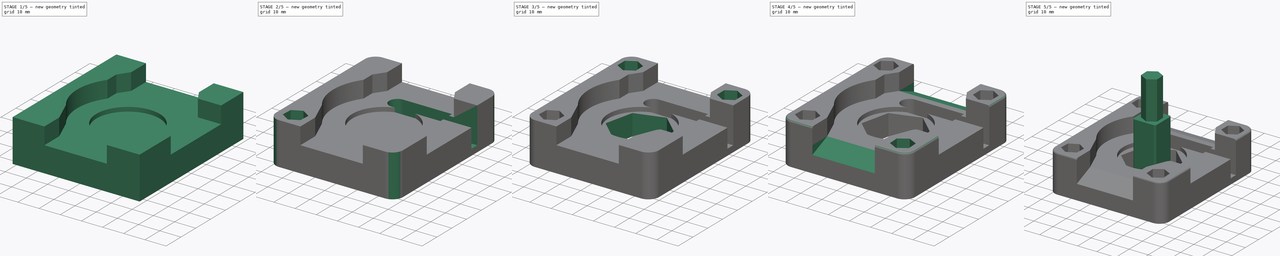
[diagram: build sequence overview — one tinted view per stage of 5, left to right]
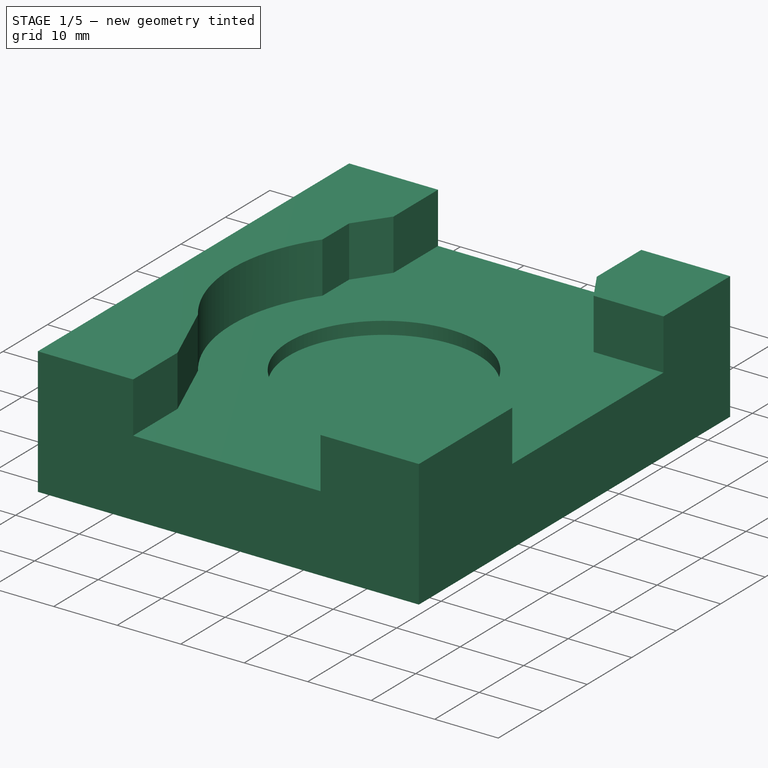
[diagram: stage 1 of 5 — iso view after this stage's code; geometry added in this stage tinted green]
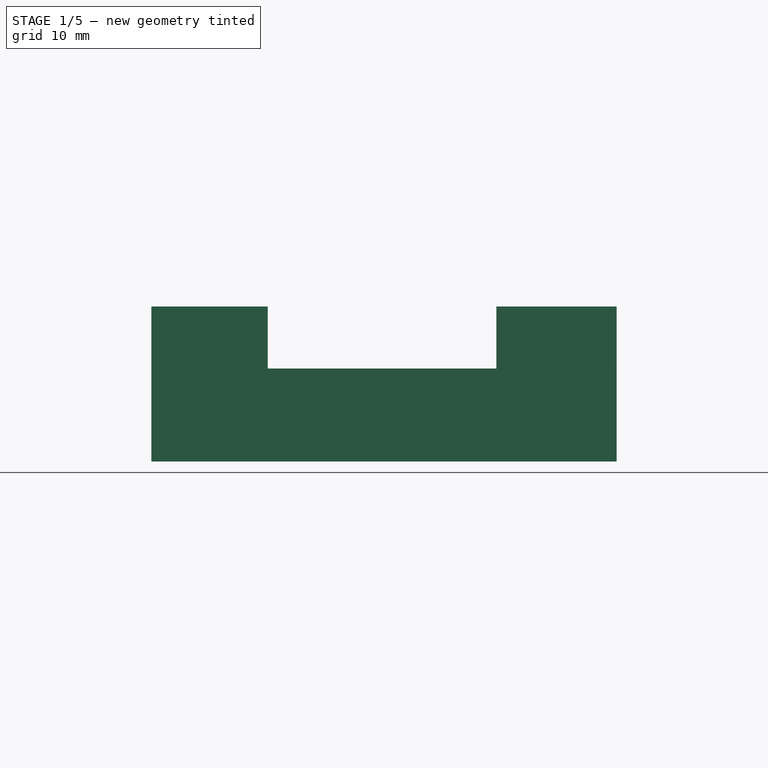
[diagram: stage 1 of 5 — front view after this stage's code; geometry added in this stage tinted green]
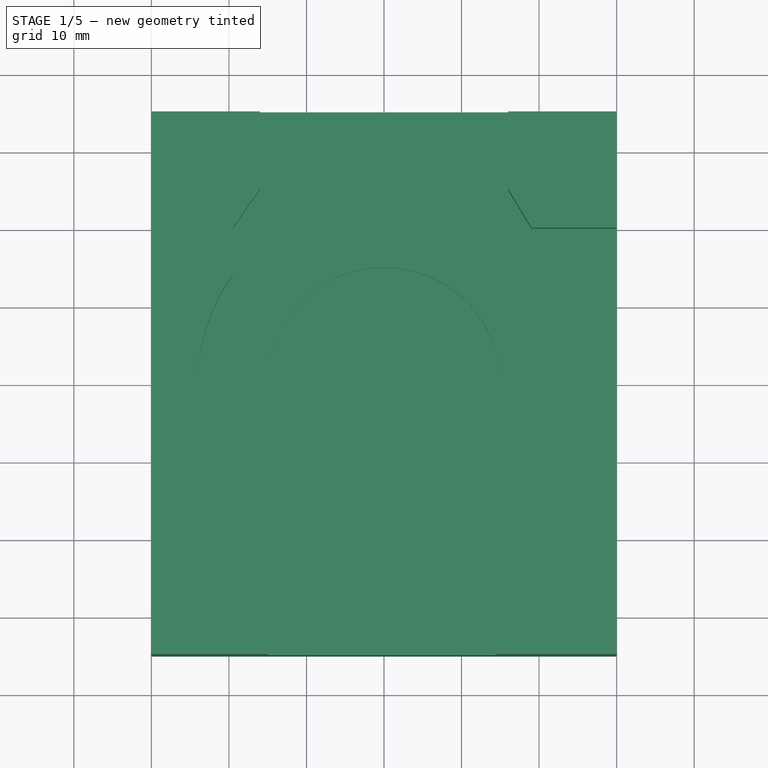
[diagram: stage 1 of 5 — top view after this stage's code; geometry added in this stage tinted green]
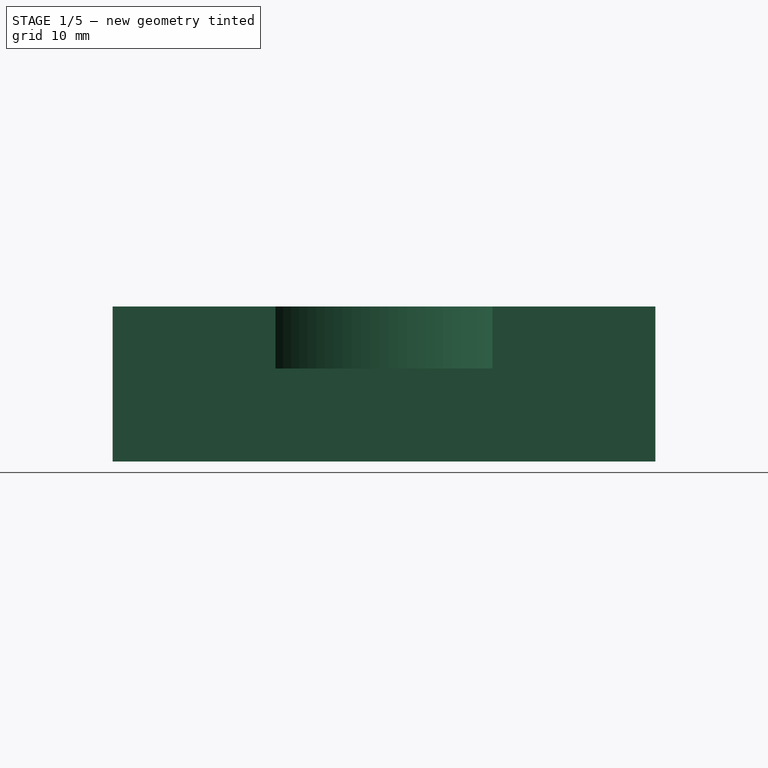
[diagram: stage 1 of 5 — right view after this stage's code; geometry added in this stage tinted green]
FCSTD DOCUMENT  (FreeCAD 0.19R23258 (Git))
Label: zach-watch3
License: All rights reserved
LicenseURL: http://en.wikipedia.org/wiki/All_rights_reserved
objects: Sketcher::SketchObject×10, PartDesign::Pocket×8, PartDesign::Pad×3, PartDesign::Fillet×3, PartDesign::Chamfer×2, PartDesign::Body×2, PartDesign::Mirrored×2, PartDesign::Plane×1
note: 47 computed .brp shape members not serialized (recipe doc carries the construction recipe); baked Part::Feature solids carry a one-line shape summary decoded from their .brp

FEATURE [Sketcher::SketchObject] Sketch  label="OuterBox"
  MapMode = 5
  Support = -> [XY_Plane]
  sketch-geometry (4):
    g0: LineSegment StartX=-30 StartY=35 StartZ=0 EndX=30 EndY=35 EndZ=0
    g1: LineSegment StartX=30 StartY=35 StartZ=0 EndX=30 EndY=-35 EndZ=0
    g2: LineSegment StartX=30 StartY=-35 StartZ=0 EndX=-30 EndY=-35 EndZ=0
    g3: LineSegment StartX=-30 StartY=-35 StartZ=0 EndX=-30 EndY=35 EndZ=0
  constraints (11):
    c: Coincident(g0,g1)
    c: Coincident(g1,g2)
    c: Coincident(g2,g3)
    c: Coincident(g3,g0)
    c: Horizontal(g0)
    c: Horizontal(g2)
    c: Vertical(g1)
    c: Vertical(g3)
    c: Symmetric(g0,g1,g-1)
    c: DistanceX(g2,g2) = 60  'Width'
    c: DistanceY(g1,g1) = 70  'Height'
FEATURE [PartDesign::Pad] Pad  label="OuterboxPad"
  Direction = (1,1,1)
  Length = 20
  Length2 = 100
  Profile = -> Sketch
  Type = 0
FEATURE [PartDesign::Plane] DatumPlane
  AttachmentOffset = pos=(0,0,20) rot=(0,0,1;0rad)
  Length = 60
  MapMode = 5
  Placement = pos=(0,0,20) rot=(0,0,1;0rad)
  ResizeMode = 1
  Support = -> [XY_Plane]
  Width = 70
  expr: Width = <<OuterBox>>.Constraints.Height
  expr: Length = <<OuterBox>>.Constraints.Width
  expr: .AttachmentOffset.Base.z = <<OuterboxPad>>.Length
FEATURE [Sketcher::SketchObject] Sketch001  label="InnerCircle"
  MapMode = 5
  Placement = pos=(0,0,20) rot=(0,0,1;0rad)
  Support = -> [DatumPlane]
  sketch-geometry (1):
    g0: Circle CenterX=0 CenterY=0 CenterZ=0 NormalX=0 NormalY=0 NormalZ=1 AngleXU=0 Radius=15
  constraints (2):
    c: Coincident(g0,g-1)
    c: Radius(g0) = 15
FEATURE [PartDesign::Pocket] Pocket  label="InnerCirclePocket"
  BaseFeature = -> Pad
  Length = 10
  Length2 = 100
  Profile = -> Sketch001
  Type = 0
  expr: Length = <<OuterboxPad>>.Length - 10mm
FEATURE [Sketcher::SketchObject] Sketch003  label="OuterCircle"
  MapMode = 5
  Placement = pos=(0,0,20) rot=(0,0,1;0rad)
  Support = -> [DatumPlane]
  sketch-geometry (1):
    g0: Circle CenterX=0 CenterY=0 CenterZ=0 NormalX=0 NormalY=0 NormalZ=1 AngleXU=0 Radius=24
  constraints (2):
    c: Coincident(g0,g-1)
    c: Radius(g0) = 24
FEATURE [PartDesign::Pocket] Pocket002  label="OuterCirclePocket"
  BaseFeature = -> Pocket
  Length = 8
  Length2 = 100
  Profile = -> Sketch003
  Type = 0
  expr: Length = <<OuterboxPad>>.Length - 12mm
FEATURE [Sketcher::SketchObject] Sketch007  label="WatchSpacing"
  MapMode = 5
  Placement = pos=(0,0,20) rot=(0,0,1;0rad)
  Support = -> [DatumPlane]
  sketch-geometry (14):
    g0: LineSegment StartX=19 StartY=20 StartZ=0 EndX=16 EndY=25 EndZ=0
    g1: LineSegment StartX=-15 StartY=-25 StartZ=0 EndX=-19.5 EndY=-14 EndZ=0
    g2: LineSegment StartX=-19.5 StartY=-14 StartZ=0 EndX=-19.5 EndY=20 EndZ=0
    g3: LineSegment StartX=14.5 StartY=-25 StartZ=0 EndX=19 EndY=-14 EndZ=0
    g4: LineSegment StartX=19 StartY=20 StartZ=0 EndX=30 EndY=20 EndZ=0
    g5: LineSegment StartX=30 StartY=-14 StartZ=0 EndX=19 EndY=-14 EndZ=0
    g6: LineSegment StartX=-16 StartY=35.4097 StartZ=0 EndX=16 EndY=35.4097 EndZ=0
    g7: LineSegment StartX=-15 StartY=-25 StartZ=0 EndX=-15 EndY=-35.0282 EndZ=0
    g8: LineSegment StartX=-15 StartY=-35.0282 StartZ=0 EndX=14.5 EndY=-35.0282 EndZ=0
    g9: LineSegment StartX=-16 StartY=25 StartZ=0 EndX=-19.5 EndY=20 EndZ=0
    g10: LineSegment StartX=14.5 StartY=-35.0282 StartZ=0 EndX=14.5 EndY=-25 EndZ=0
    g11: LineSegment StartX=30 StartY=-14 StartZ=0 EndX=30 EndY=20 EndZ=0
    g12: LineSegment StartX=16 StartY=25 StartZ=0 EndX=16 EndY=35.4097 EndZ=0
    g13: LineSegment StartX=-16 StartY=25 StartZ=0 EndX=-16 EndY=35.4097 EndZ=0
  constraints (39):
    c: Coincident(g1,g2)
    c: Vertical(g2)
    c: DistanceY(g0,g0) = 5
    c: DistanceY(g3,g3) = 11
    c: DistanceY(g1,g1) = 11
    c: DistanceX(g1,g3) = 29.5
    c: Coincident(g0,g4)
    c: Horizontal(g4)
    c: Coincident(g5,g3)
    c: Horizontal(g5)
    c: DistanceY(g1,g-1) = 25
    c: DistanceX(g3,g3) = 4.5
    c: DistanceX(g-1,g3) = 14.5
    c: DistanceX(g-1,g0) = 19
    c: Coincident(g1,g7)
    c: Vertical(g7)
    c: Coincident(g7,g8)
    c: DistanceY(g-1,g0) = 25
    c: DistanceY(g3,g-1) = 14
    c: DistanceX(g-1,g0) = 16
    c: DistanceX(g1,g-1) = 19.5
    c: DistanceY(g-1,g2) = 20
    c: Coincident(g9,g2)
    c: Horizontal(g6)
    c: Horizontal(g8)
    c: Coincident(g8,g10)
    c: Coincident(g10,g3)
    c: Vertical(g10)
    c: Coincident(g5,g11)
    c: Coincident(g11,g4)
    c: Vertical(g11)
    c: Coincident(g0,g12)
    c: Coincident(g12,g6)
    c: Vertical(g12)
    c: DistanceY(g2,g9) = 5
    c: Coincident(g9,g13)
    c: Vertical(g13)
    c: Coincident(g6,g13)
    c: DistanceX(g6,g6) = 32
FEATURE [Sketcher::SketchObject] Sketch005  label="PowerAdaptor"
  ExternalGeometry = -> [Sketch]
  MapMode = 5
  Placement = pos=(0,0,20) rot=(0,0,1;0rad)
  Support = -> [DatumPlane]
  sketch-geometry (8):
    g0: LineSegment StartX=16.7 StartY=22 StartZ=0 EndX=-6.3 EndY=22 EndZ=0
    g1: ArcOfCircle CenterX=-6.3 CenterY=18.1 CenterZ=0 NormalX=0 NormalY=0 NormalZ=1 AngleXU=0 Radius=3.9 StartAngle=1.5708 EndAngle=4.71239
    g2: LineSegment StartX=-6.3 StartY=14.2 StartZ=0 EndX=16.7 EndY=14.2 EndZ=0
    g3: LineSegment StartX=16.7 StartY=22 StartZ=0 EndX=16.7 EndY=20.05 EndZ=0
    g4: LineSegment StartX=16.7 StartY=20.05 StartZ=0 EndX=30 EndY=20.05 EndZ=0
    g5: LineSegment StartX=30 StartY=20.05 StartZ=0 EndX=30 EndY=16.15 EndZ=0
    g6: LineSegment StartX=30 StartY=16.15 StartZ=0 EndX=16.7 EndY=16.15 EndZ=0
    g7: LineSegment StartX=16.7 StartY=16.15 StartZ=0 EndX=16.7 EndY=14.2 EndZ=0
  constraints (23):
    c: Horizontal(g0)
    c: Tangent(g0,g1) = -1.5708
    c: Horizontal(g2)
    c: Tangent(g1,g2) = -1.5708
    c: Coincident(g0,g3)
    c: Vertical(g3)
    c: Coincident(g3,g4)
    c: PointOnObject(g4,g-3)
    c: Horizontal(g4)
    c: Coincident(g4,g5)
    c: PointOnObject(g5,g-3)
    c: Coincident(g5,g6)
    c: Horizontal(g6)
    c: Coincident(g6,g7)
    c: Coincident(g7,g2)
    c: Vertical(g7)
    c: Equal(g4,g6)
    c: DistanceX(g1,g-1) = 6.3
    c: DistanceX(g-1,g2) = 16.7
    c: DistanceY(g1,g0) = 7.8
    c: DistanceY(g6,g3) = 3.9
    c: DistanceY(g-1,g2) = 14.2
    c: DistanceY(g2,g6) = 1.95
FEATURE [PartDesign::Pocket] Pocket003  label="WatchSpacingPocket"
  BaseFeature = -> Pocket002
  Length = 8
  Length2 = 100
  Profile = -> Sketch007
  Type = 0
  expr: Length = <<OuterCirclePocket>>.Length
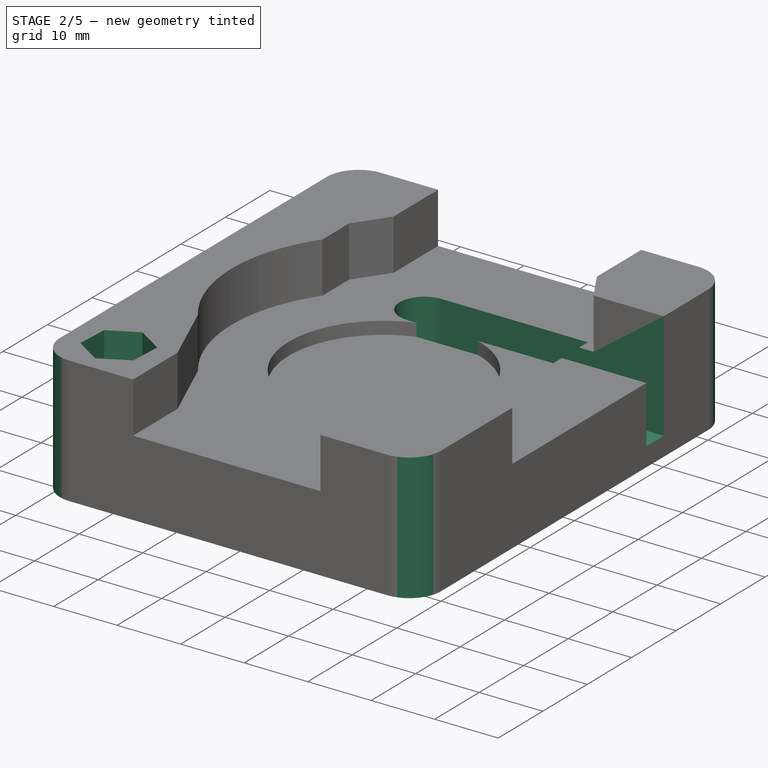
[diagram: stage 2 of 5 — iso view after this stage's code; geometry added in this stage tinted green]
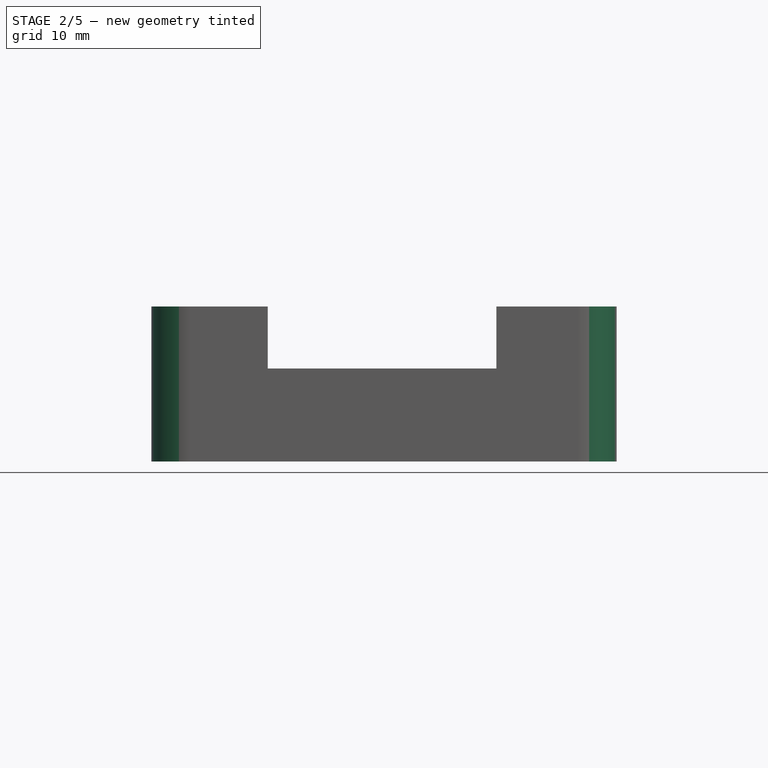
[diagram: stage 2 of 5 — front view after this stage's code; geometry added in this stage tinted green]
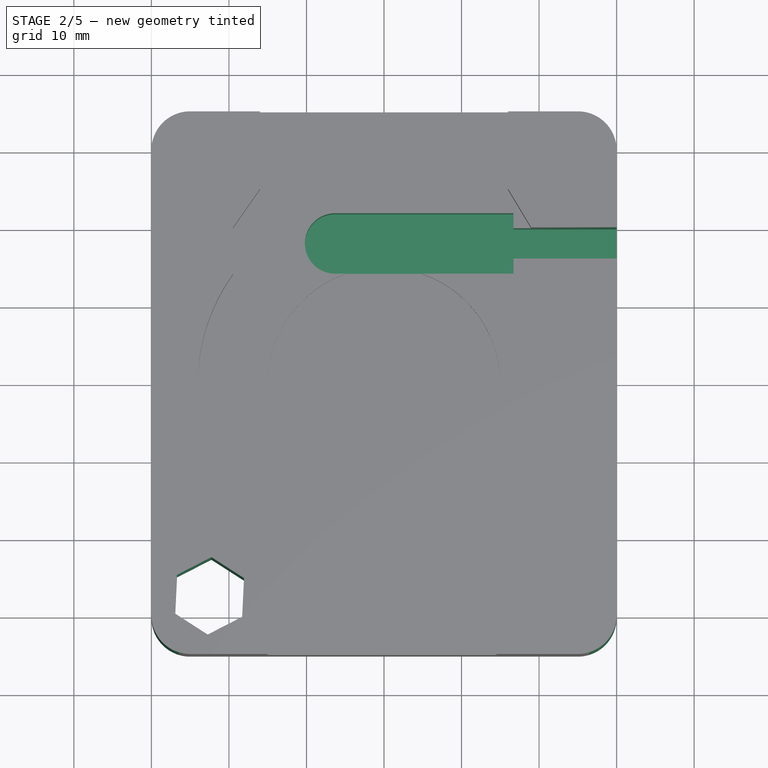
[diagram: stage 2 of 5 — top view after this stage's code; geometry added in this stage tinted green]
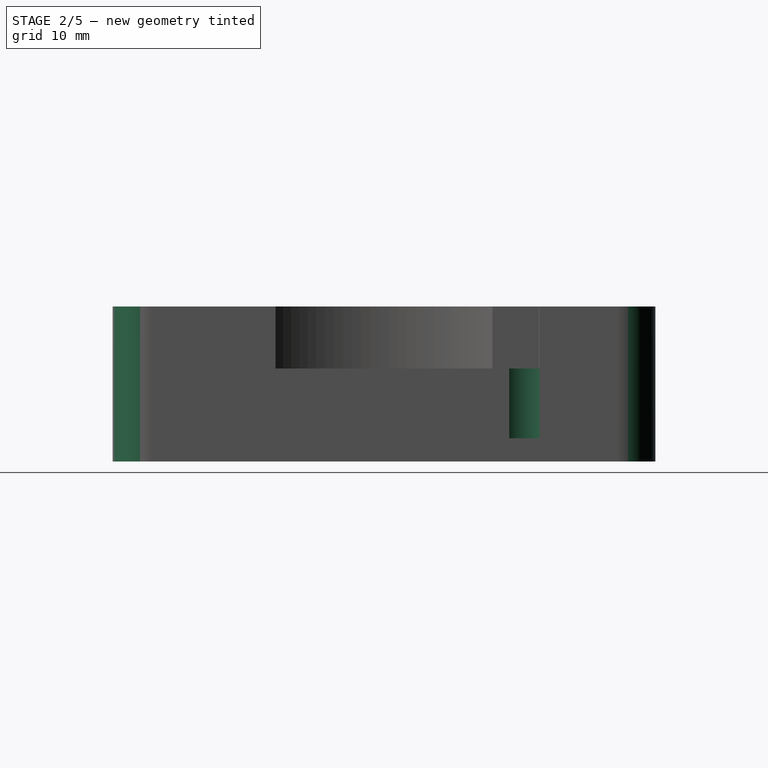
[diagram: stage 2 of 5 — right view after this stage's code; geometry added in this stage tinted green]
FEATURE [PartDesign::Pocket] Pocket004  label="PowerAdaptorPocket"
  BaseFeature = -> Pocket003
  Length = 17
  Length2 = 100
  Profile = -> Sketch005
  Type = 0
  expr: Length = <<OuterCirclePocket>>.Length + 9mm
FEATURE [PartDesign::Fillet] Fillet
  Base = -> Pocket004 [Edge8,Edge2,Edge43,Edge12]
  BaseFeature = -> Pocket004
  Radius = 5
  SupportTransform = false
FEATURE [PartDesign::Body] Body001
  Group = -> [Sketch010,Sketch011,Pad001,Pad002,Chamfer002,Fillet002]
  Origin = -> Origin001
  Tip = -> Fillet002
FEATURE [Sketcher::SketchObject] Sketch012
  ExternalGeometry = -> [Sketch]
  MapMode = 5
  Placement = pos=(0,0,20) rot=(0,0,1;0rad)
  Support = -> [DatumPlane]
  sketch-geometry (7):
    g0: LineSegment StartX=-18.2958 StartY=-30.2064 StartZ=0 EndX=-18.0541 EndY=-25.2123 EndZ=0
    g1: LineSegment StartX=-18.0541 StartY=-25.2123 StartZ=0 EndX=-22.2583 EndY=-22.5058 EndZ=0
    g2: LineSegment StartX=-22.2583 StartY=-22.5058 StartZ=0 EndX=-26.7042 EndY=-24.7936 EndZ=0
    g3: LineSegment StartX=-26.7042 StartY=-24.7936 StartZ=0 EndX=-26.9459 EndY=-29.7877 EndZ=0
    g4: LineSegment StartX=-26.9459 StartY=-29.7877 StartZ=0 EndX=-22.7417 EndY=-32.4942 EndZ=0
    g5: LineSegment StartX=-22.7417 StartY=-32.4942 StartZ=0 EndX=-18.2958 EndY=-30.2064 EndZ=0
    g6: Circle [constr] CenterX=-22.5 CenterY=-27.5 CenterZ=0 NormalX=0 NormalY=0 NormalZ=1 AngleXU=0 Radius=5
  constraints (16):
    c: Coincident(g0,g1)
    c: Coincident(g1,g2)
    c: Coincident(g2,g3)
    c: Coincident(g3,g4)
    c: Coincident(g4,g5)
    c: Coincident(g5,g0)
    c: Equal(g0, g1-g5) x5
    c: PointOnObject(g0,g6)
    c: PointOnObject(g1,g6)
    c: PointOnObject(g2,g6)
    c: PointOnObject(g3,g6)
    c: PointOnObject(g4,g6)
    c: PointOnObject(g5,g6)
    c: Radius(g6) = 5
    c: DistanceX(g-3,g6) = 7.5
    c: DistanceY(g-3,g6) = 7.5
FEATURE [PartDesign::Pocket] Pocket005
  BaseFeature = -> Fillet
  Length = 20
  Length2 = 100
  Profile = -> Sketch012
  Type = 0
  expr: Length = <<OuterboxPad>>.Length
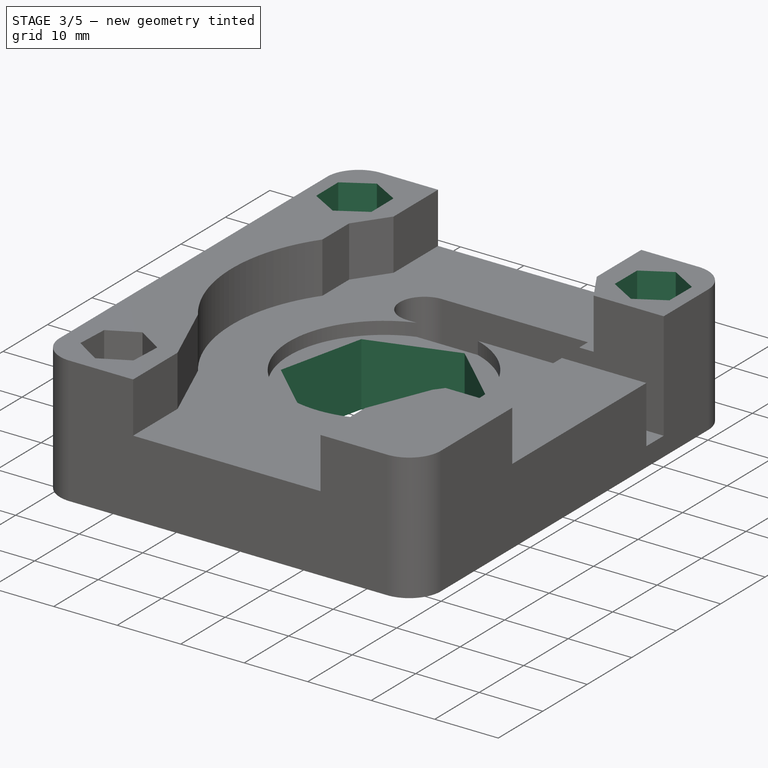
[diagram: stage 3 of 5 — iso view after this stage's code; geometry added in this stage tinted green]
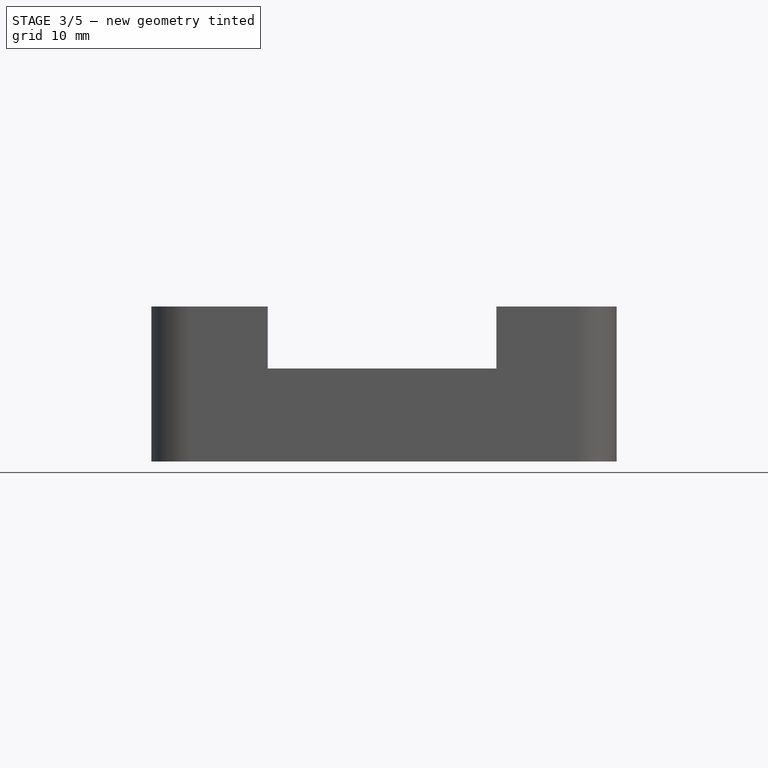
[diagram: stage 3 of 5 — front view after this stage's code; geometry added in this stage tinted green]
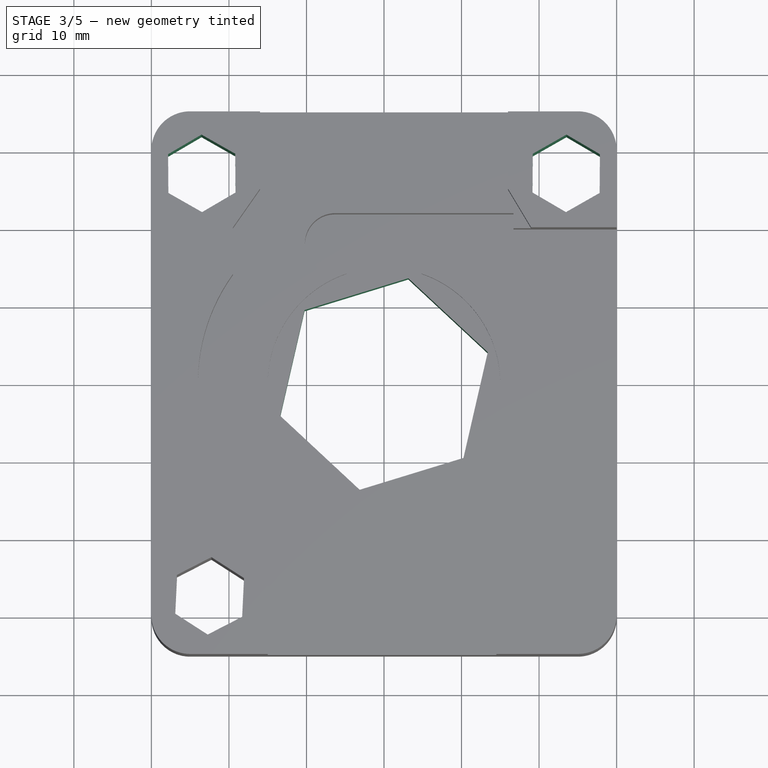
[diagram: stage 3 of 5 — top view after this stage's code; geometry added in this stage tinted green]
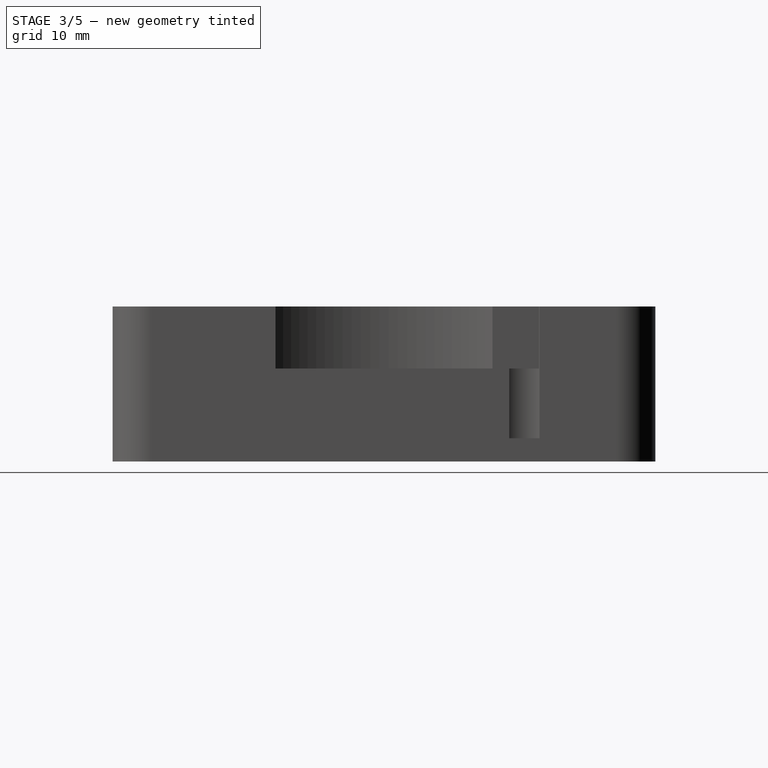
[diagram: stage 3 of 5 — right view after this stage's code; geometry added in this stage tinted green]
FEATURE [PartDesign::Pocket] Pocket006
  BaseFeature = -> Pocket005
  Length = 20
  Length2 = 100
  Profile = -> Sketch009
  Type = 0
  expr: Length = <<OuterboxPad>>.Length
FEATURE [PartDesign::Pocket] Pocket007
  BaseFeature = -> Pocket006
  Length = 20
  Length2 = 100
  Profile = -> Sketch012
  Type = 0
  expr: Length = <<OuterboxPad>>.Length
FEATURE [Sketcher::SketchObject] Sketch008
  ExternalGeometry = -> [Sketch]
  MapMode = 5
  Placement = pos=(0,0,20) rot=(0,0,1;0rad)
  Support = -> [DatumPlane]
  sketch-geometry (7):
    g0: LineSegment StartX=-19.1861 StartY=29.5279 StartZ=0 EndX=-23.5322 EndY=31.9999 EndZ=0
    g1: LineSegment StartX=-23.5322 StartY=31.9999 StartZ=0 EndX=-27.8462 EndY=29.472 EndZ=0
    g2: LineSegment StartX=-27.8462 StartY=29.472 StartZ=0 EndX=-27.8139 EndY=24.4721 EndZ=0
    g3: LineSegment StartX=-27.8139 StartY=24.4721 StartZ=0 EndX=-23.4678 EndY=22.0001 EndZ=0
    g4: LineSegment StartX=-23.4678 StartY=22.0001 StartZ=0 EndX=-19.1538 EndY=24.528 EndZ=0
    g5: LineSegment StartX=-19.1538 StartY=24.528 StartZ=0 EndX=-19.1861 EndY=29.5279 EndZ=0
    g6: Circle [constr] CenterX=-23.5 CenterY=27 CenterZ=0 NormalX=0 NormalY=0 NormalZ=1 AngleXU=0 Radius=5
  constraints (16):
    c: Coincident(g0,g1)
    c: Coincident(g1,g2)
    c: Coincident(g2,g3)
    c: Coincident(g3,g4)
    c: Coincident(g4,g5)
    c: Coincident(g5,g0)
    c: Equal(g0, g1-g5) x5
    c: PointOnObject(g0,g6)
    c: PointOnObject(g1,g6)
    c: PointOnObject(g2,g6)
    c: PointOnObject(g3,g6)
    c: PointOnObject(g4,g6)
    c: PointOnObject(g5,g6)
    c: Radius(g6) = 5
    c: DistanceX(g-3,g6) = 6.5
    c: DistanceY(g6,g-3) = 8
FEATURE [PartDesign::Pocket] Pocket008
  BaseFeature = -> Pocket007
  Length = 20
  Length2 = 100
  Profile = -> Sketch008
  Type = 0
  expr: Length = <<OuterboxPad>>.Length
FEATURE [PartDesign::Mirrored] Mirrored
  BaseFeature = -> Pocket008
  MirrorPlane = -> Sketch008 [V_Axis]
  Originals = -> [Pocket008]
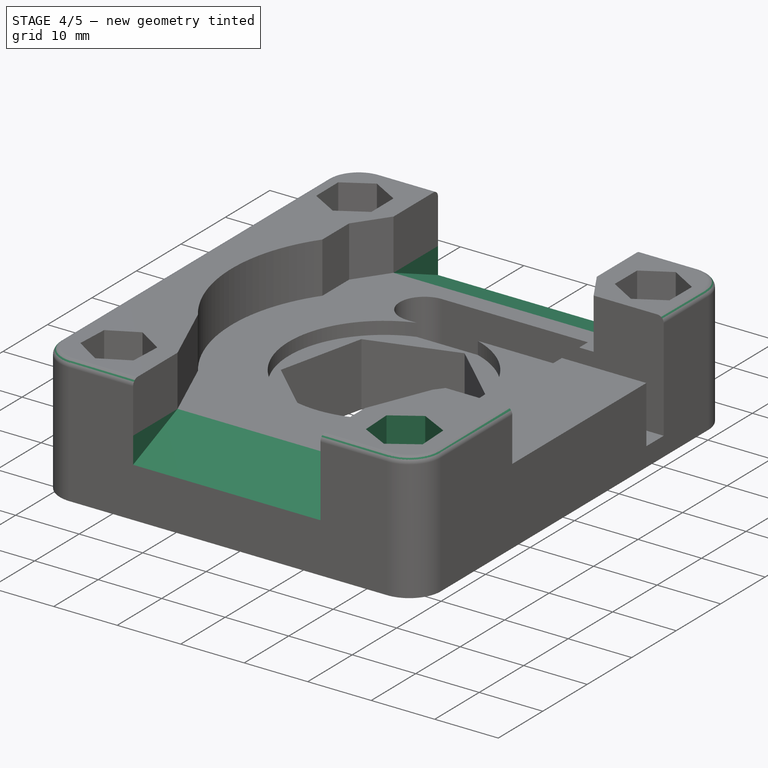
[diagram: stage 4 of 5 — iso view after this stage's code; geometry added in this stage tinted green]
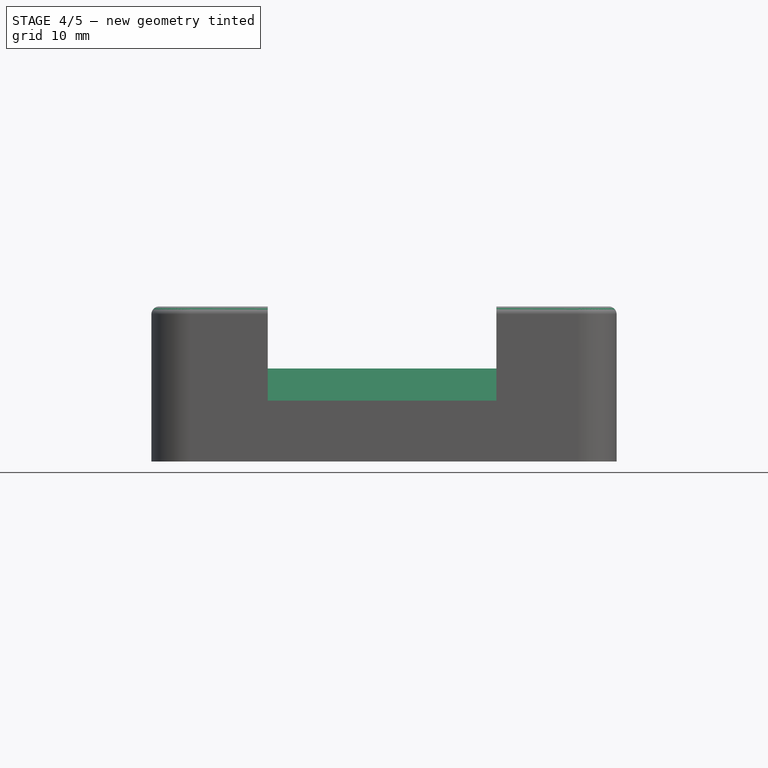
[diagram: stage 4 of 5 — front view after this stage's code; geometry added in this stage tinted green]
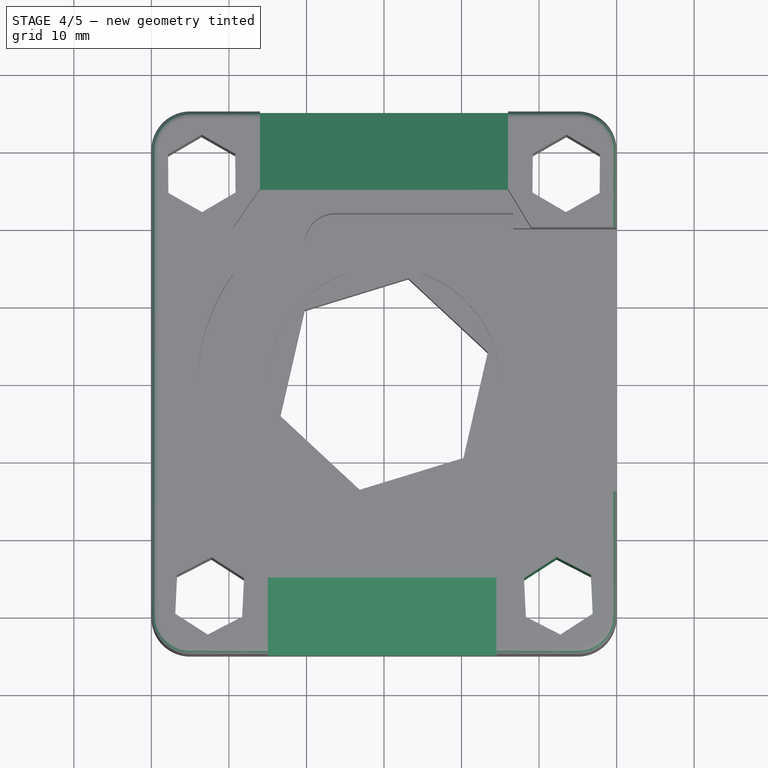
[diagram: stage 4 of 5 — top view after this stage's code; geometry added in this stage tinted green]
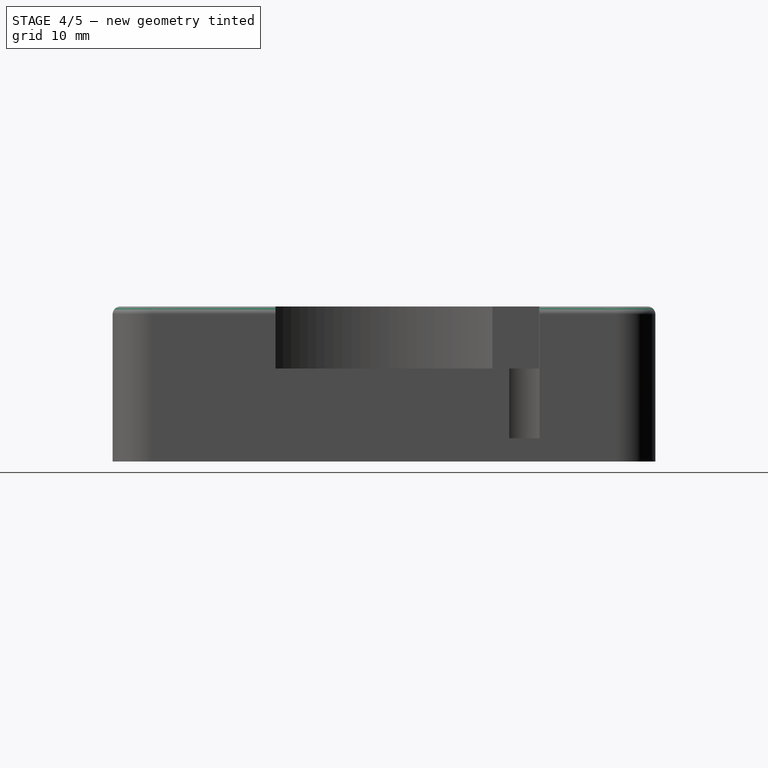
[diagram: stage 4 of 5 — right view after this stage's code; geometry added in this stage tinted green]
FEATURE [PartDesign::Mirrored] Mirrored001
  BaseFeature = -> Mirrored
  MirrorPlane = -> Sketch012 [V_Axis]
  Originals = -> [Pocket007]
FEATURE [PartDesign::Chamfer] Chamfer
  Angle = 22.5
  Base = -> Mirrored001 [Edge107,Edge8]
  BaseFeature = -> Mirrored001
  ChamferType = 2
  FlipDirection = true
  Size = 10
  Size2 = 1
  SupportTransform = false
FEATURE [PartDesign::Fillet] Fillet003
  Base = -> Chamfer [Edge19,Edge17,Edge16,Edge18,Edge4,Edge9,Edge79,Edge78,Edge128,Edge134,Edge102]
  BaseFeature = -> Chamfer
  Radius = 1
  SupportTransform = false
FEATURE [PartDesign::Body] Body
  Group = -> [Sketch,Pad,DatumPlane,Sketch001,Pocket,Sketch003,Pocket002,Pocket003,Pocket004,Fillet,Sketch008,Sketch009,Pocket005,Pocket006,Sketch012,Pocket007,Pocket008,Mirrored,Mirrored001,Chamfer,Fillet003]
  Origin = -> Origin
  Tip = -> Fillet003
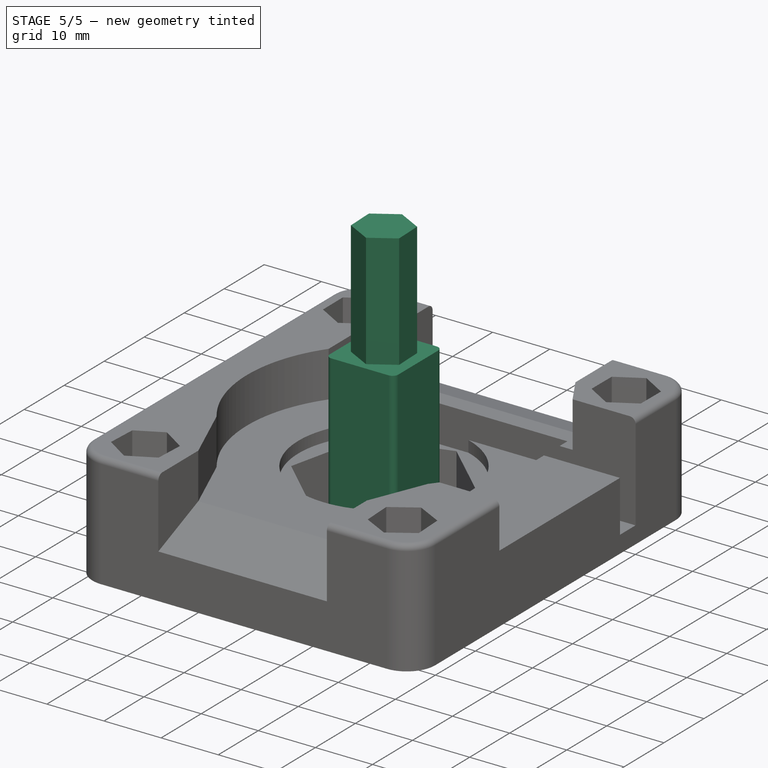
[diagram: stage 5 of 5 — iso view after this stage's code; geometry added in this stage tinted green]
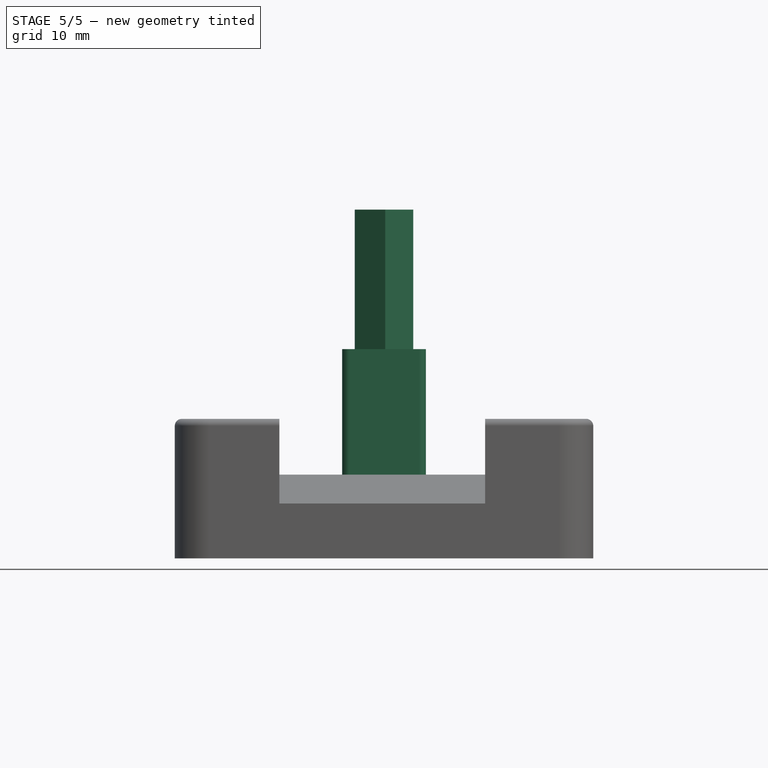
[diagram: stage 5 of 5 — front view after this stage's code; geometry added in this stage tinted green]
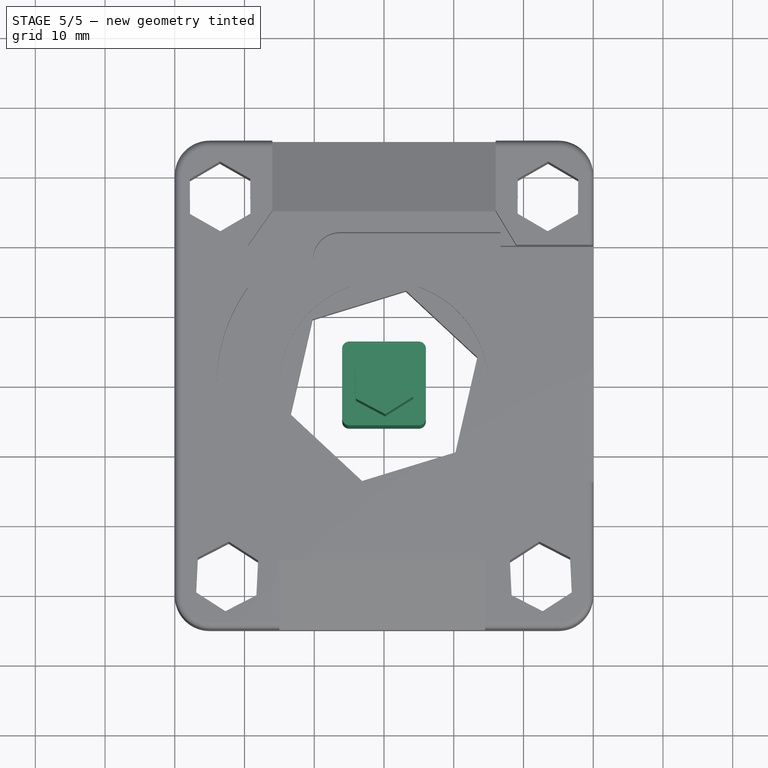
[diagram: stage 5 of 5 — top view after this stage's code; geometry added in this stage tinted green]
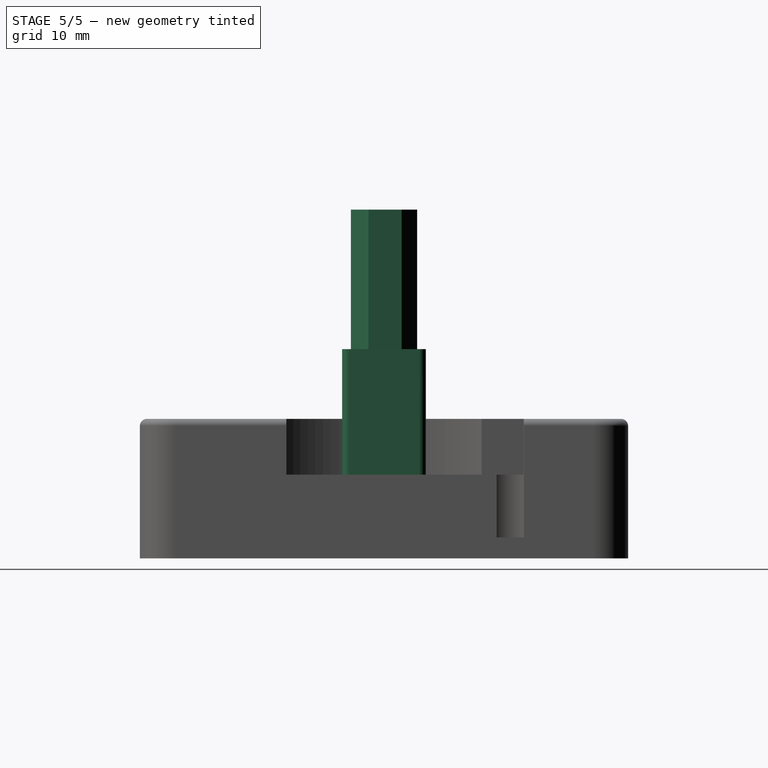
[diagram: stage 5 of 5 — right view after this stage's code; geometry added in this stage tinted green]
FEATURE [Sketcher::SketchObject] Sketch009
  MapMode = 5
  Placement = pos=(0,0,20) rot=(0,0,1;0rad)
  Support = -> [DatumPlane]
  sketch-geometry (7):
    g0: LineSegment StartX=10.2484 StartY=-9.5378 StartZ=0 EndX=13.3842 EndY=4.1065 EndZ=0
    g1: LineSegment StartX=13.3842 StartY=4.1065 StartZ=0 EndX=3.13576 EndY=13.6443 EndZ=0
    g2: LineSegment StartX=3.13576 StartY=13.6443 StartZ=0 EndX=-10.2484 EndY=9.5378 EndZ=0
    g3: LineSegment StartX=-10.2484 StartY=9.5378 StartZ=0 EndX=-13.3842 EndY=-4.1065 EndZ=0
    g4: LineSegment StartX=-13.3842 StartY=-4.1065 StartZ=0 EndX=-3.13576 EndY=-13.6443 EndZ=0
    g5: LineSegment StartX=-3.13576 StartY=-13.6443 StartZ=0 EndX=10.2484 EndY=-9.5378 EndZ=0
    g6: Circle [constr] CenterX=0 CenterY=0 CenterZ=0 NormalX=0 NormalY=0 NormalZ=1 AngleXU=0 Radius=14
  constraints (15):
    c: Coincident(g0,g1)
    c: Coincident(g1,g2)
    c: Coincident(g2,g3)
    c: Coincident(g3,g4)
    c: Coincident(g4,g5)
    c: Coincident(g5,g0)
    c: Equal(g0, g1-g5) x5
    c: PointOnObject(g0,g6)
    c: PointOnObject(g1,g6)
    c: PointOnObject(g2,g6)
    c: PointOnObject(g3,g6)
    c: PointOnObject(g4,g6)
    c: PointOnObject(g5,g6)
    c: Coincident(g6,g-1)
    c: Radius(g6) = 14
FEATURE [Sketcher::SketchObject] Sketch010
  MapMode = 5
  Support = -> [XY_Plane001]
  sketch-geometry (4):
    g0: LineSegment StartX=-6 StartY=6 StartZ=0 EndX=6 EndY=6 EndZ=0
    g1: LineSegment StartX=6 StartY=6 StartZ=0 EndX=6 EndY=-6 EndZ=0
    g2: LineSegment StartX=6 StartY=-6 StartZ=0 EndX=-6 EndY=-6 EndZ=0
    g3: LineSegment StartX=-6 StartY=-6 StartZ=0 EndX=-6 EndY=6 EndZ=0
  constraints (11):
    c: Coincident(g0,g1)
    c: Coincident(g1,g2)
    c: Coincident(g2,g3)
    c: Coincident(g3,g0)
    c: Horizontal(g0)
    c: Horizontal(g2)
    c: Vertical(g1)
    c: Vertical(g3)
    c: DistanceY(g1,g1) = 12
    c: Equal(g3,g2)
    c: Symmetric(g0,g1,g-1)
FEATURE [Sketcher::SketchObject] Sketch011
  MapMode = 5
  Support = -> [XY_Plane001]
  sketch-geometry (7):
    g0: LineSegment StartX=4.19941 StartY=-2.21978 StartZ=0 EndX=4.0221 EndY=2.52691 EndZ=0
    g1: LineSegment StartX=4.0221 StartY=2.52691 StartZ=0 EndX=-0.177317 EndY=4.74669 EndZ=0
    g2: LineSegment StartX=-0.177317 StartY=4.74669 StartZ=0 EndX=-4.19941 EndY=2.21978 EndZ=0
    g3: LineSegment StartX=-4.19941 StartY=2.21978 StartZ=0 EndX=-4.0221 EndY=-2.52691 EndZ=0
    g4: LineSegment StartX=-4.0221 StartY=-2.52691 StartZ=0 EndX=0.177317 EndY=-4.74669 EndZ=0
    g5: LineSegment StartX=0.177317 StartY=-4.74669 StartZ=0 EndX=4.19941 EndY=-2.21978 EndZ=0
    g6: Circle [constr] CenterX=0 CenterY=0 CenterZ=0 NormalX=0 NormalY=0 NormalZ=1 AngleXU=0 Radius=4.75
  constraints (15):
    c: Coincident(g0,g1)
    c: Coincident(g1,g2)
    c: Coincident(g2,g3)
    c: Coincident(g3,g4)
    c: Coincident(g4,g5)
    c: Coincident(g5,g0)
    c: Equal(g0, g1-g5) x5
    c: PointOnObject(g0,g6)
    c: PointOnObject(g1,g6)
    c: PointOnObject(g2,g6)
    c: PointOnObject(g3,g6)
    c: PointOnObject(g4,g6)
    c: PointOnObject(g5,g6)
    c: Coincident(g6,g-1)
    c: Radius(g6) = 4.75
FEATURE [PartDesign::Pad] Pad001  label="InnerPad"
  Direction = (1,1,1)
  Length = 50
  Length2 = 100
  Profile = -> Sketch011
  Type = 0
FEATURE [PartDesign::Pad] Pad002  label="OuterPad"
  BaseFeature = -> Pad001
  Direction = (1,1,1)
  Length = 30
  Length2 = 100
  Profile = -> Sketch010
  Type = 0
  expr: Length = <<InnerPad>>.Length - <<OuterboxPad>>.Length
FEATURE [PartDesign::Chamfer] Chamfer002
  Angle = 45
  Base = -> Pad002 [Edge10,Edge9,Edge7,Edge8]
  BaseFeature = -> Pad002
  ChamferType = 0
  FlipDirection = false
  Size = 1
  Size2 = 1
  SupportTransform = false
FEATURE [PartDesign::Fillet] Fillet002
  Base = -> Chamfer002 [Edge19,Edge21,Edge22,Edge25]
  BaseFeature = -> Chamfer002
  Radius = 1
  SupportTransform = false
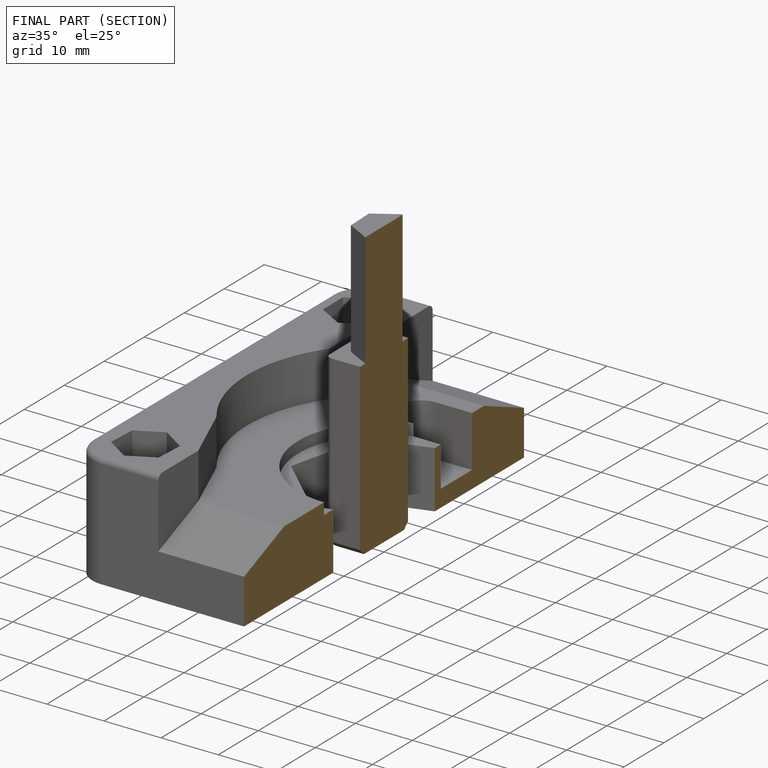
[diagram: finished part — half-section view (interior)]
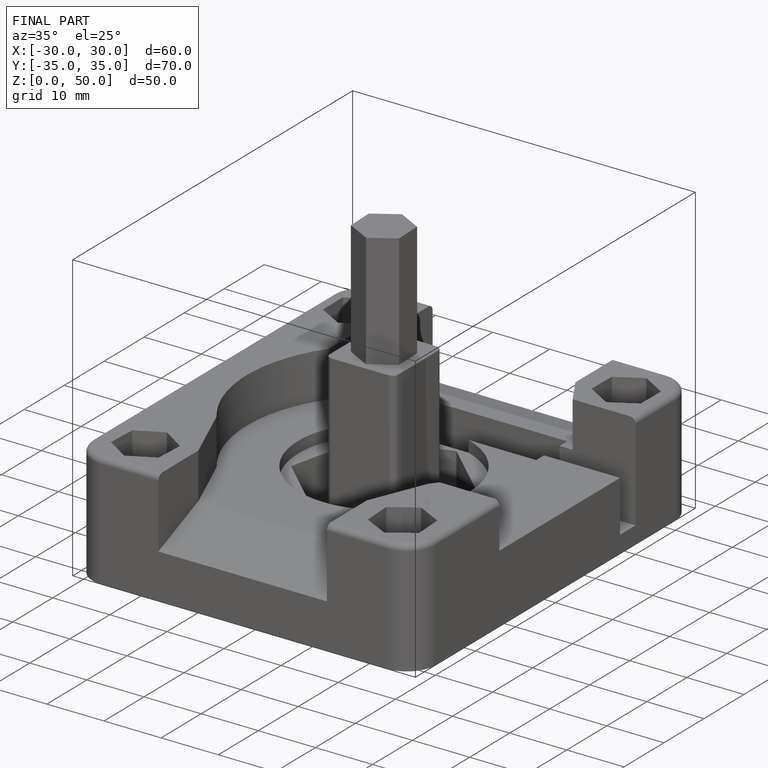
[diagram: finished part — iso view with bounding-box wireframe]
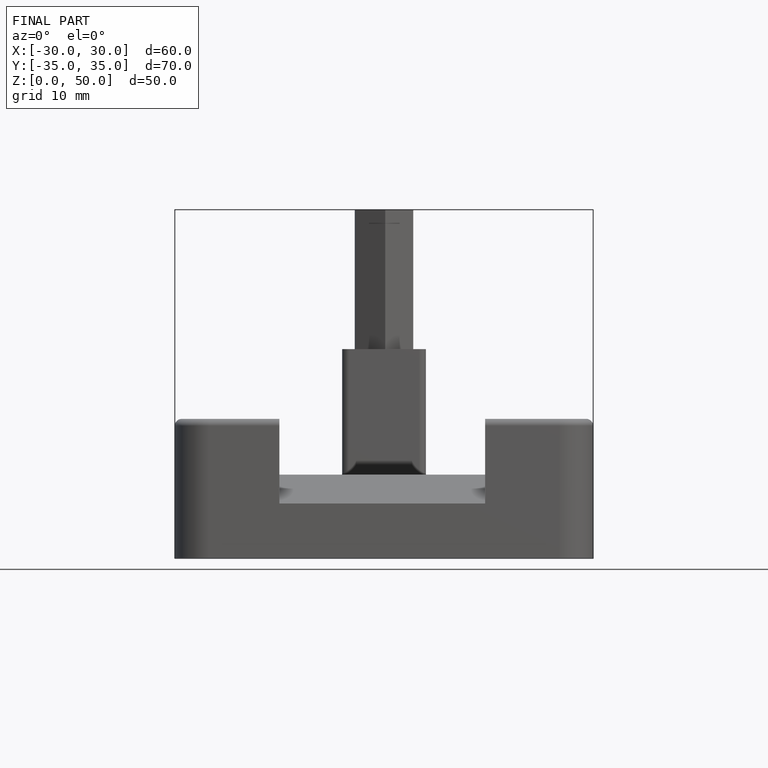
[diagram: finished part — front view with bounding-box wireframe]
